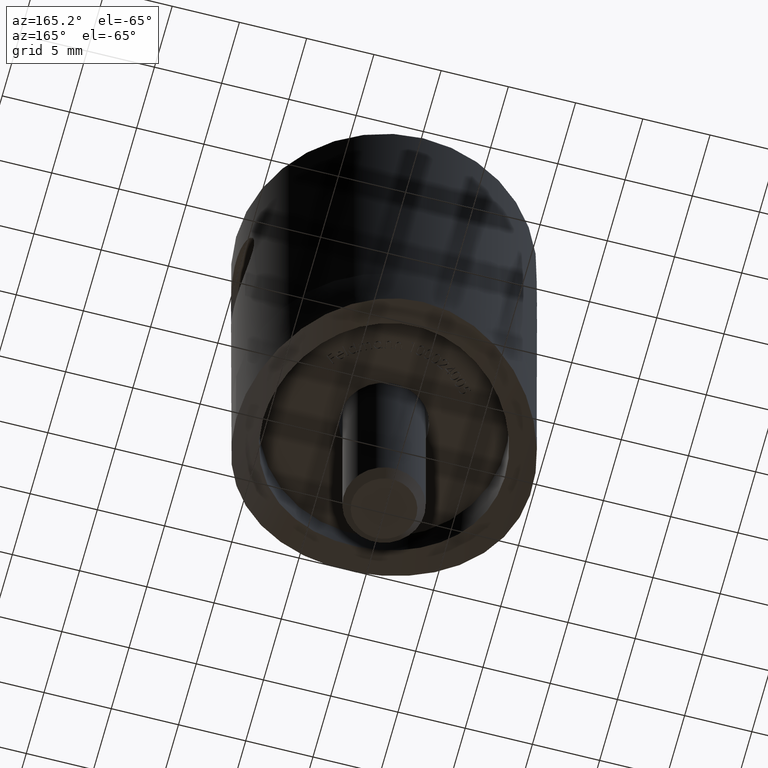
[diagram: clean part render]
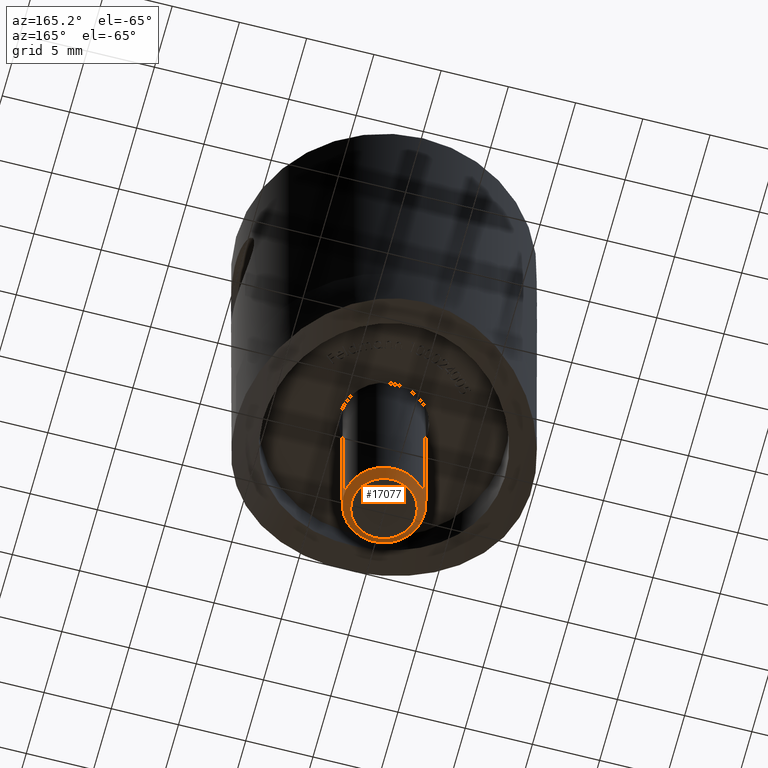
[diagram: same view with one face highlighted and labeled with its STEP entity id]
A machine part, auxiliary view. The second image highlights one B-rep face of the part: STEP entity #17077.
In plain terms, the highlighted conical surface has half-angle 45 deg.
Its self-contained STEP definition (entity closure, byte-faithful):
#561 = DIRECTION ( 'NONE',  ( -0.000000000000000000, 1.224646799147351975E-16, -1.000000000000000000 ) ) ;
#956 = FACE_BOUND ( 'NONE', #10485, .T. ) ;
#1266 = CARTESIAN_POINT ( 'NONE',  ( 0.000000000000000000, -2.999999999999996891, 24.39999999999999858 ) ) ;
#2015 = CONICAL_SURFACE ( 'NONE', #17151, 2.999999999999993783, 0.7853981633974501664 ) ;
#2431 = CIRCLE ( 'NONE', #8470, 2.399999999999985256 ) ;
#3822 = CARTESIAN_POINT ( 'NONE',  ( 0.000000000000000000, -2.988138189919541717E-15, 24.39999999999999858 ) ) ;
#4010 = DIRECTION ( 'NONE',  ( 0.000000000000000000, -1.000000000000000000, 0.000000000000000000 ) ) ;
#6491 = AXIS2_PLACEMENT_3D ( 'NONE', #3822, #17520, #4010 ) ;
#6537 = CARTESIAN_POINT ( 'NONE',  ( 0.000000000000000000, -2.399999999999987921, 25.00000000000000355 ) ) ;
#8014 = EDGE_CURVE ( 'NONE', #15581, #15581, #2431, .T. ) ;
#8470 = AXIS2_PLACEMENT_3D ( 'NONE', #16706, #15177, #11093 ) ;
#8778 = DIRECTION ( 'NONE',  ( 0.000000000000000000, 1.000000000000000000, 0.000000000000000000 ) ) ;
#10485 = EDGE_LOOP ( 'NONE', ( #14863 ) ) ;
#11093 = DIRECTION ( 'NONE',  ( 0.000000000000000000, -1.000000000000000000, 0.000000000000000000 ) ) ;
#11372 = FACE_OUTER_BOUND ( 'NONE', #15285, .T. ) ;
#11906 = CIRCLE ( 'NONE', #6491, 2.999999999999993783 ) ;
#12029 = EDGE_CURVE ( 'NONE', #16198, #16198, #11906, .T. ) ;
#13721 = ORIENTED_EDGE ( 'NONE', *, *, #12029, .F. ) ;
#14190 = CARTESIAN_POINT ( 'NONE',  ( 0.000000000000000000, -2.988138189919541717E-15, 24.39999999999999858 ) ) ;
#14863 = ORIENTED_EDGE ( 'NONE', *, *, #8014, .F. ) ;
#15177 = DIRECTION ( 'NONE',  ( 0.000000000000000000, -1.224646799147353207E-16, 1.000000000000000000 ) ) ;
#15285 = EDGE_LOOP ( 'NONE', ( #13721 ) ) ;
#15581 = VERTEX_POINT ( 'NONE', #6537 ) ;
#16198 = VERTEX_POINT ( 'NONE', #1266 ) ;
#16706 = CARTESIAN_POINT ( 'NONE',  ( 0.000000000000000000, -3.061616997868383437E-15, 25.00000000000000355 ) ) ;
#17077 = ADVANCED_FACE ( 'NONE', ( #956, #11372 ), #2015, .T. ) ;
#17151 = AXIS2_PLACEMENT_3D ( 'NONE', #14190, #561, #8778 ) ;
#17520 = DIRECTION ( 'NONE',  ( -0.000000000000000000, 1.224646799147351975E-16, -1.000000000000000000 ) ) ;